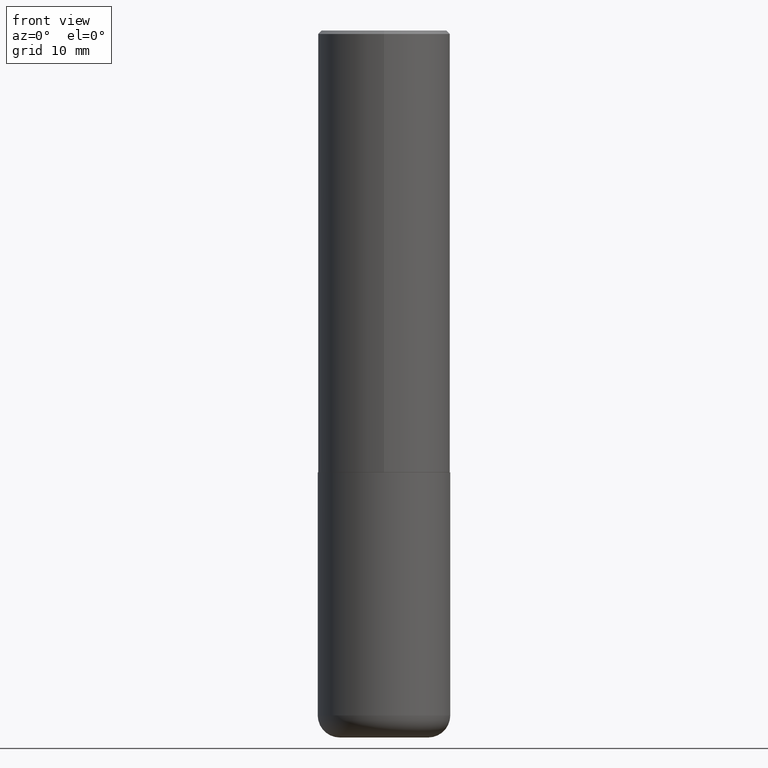
[diagram: clean part render]
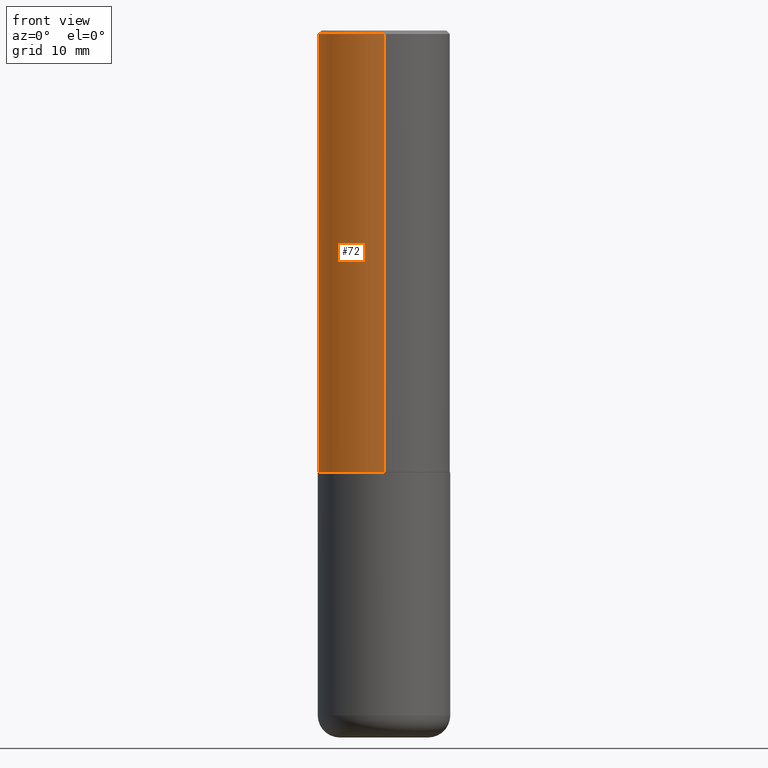
[diagram: same view with one face highlighted and labeled with its STEP entity id]
A machine part, front view. The second image highlights one B-rep face of the part: STEP entity #72.
In plain terms, the highlighted cylindrical surface (partial cylindrical patch) has radius 9.525 mm, axis along (-0, 0, 1).
Its self-contained STEP definition (entity closure, byte-faithful):
#13 = VERTEX_POINT ( 'NONE', #76 ) ;
#36 = VERTEX_POINT ( 'NONE', #269 ) ;
#56 = CARTESIAN_POINT ( 'NONE',  ( 0.000000000000000000, 0.000000000000000000, 0.000000000000000000 ) ) ;
#60 = DIRECTION ( 'NONE',  ( -2.444465131706345255E-29, 3.492918657822378473E-15, 1.000000000000000000 ) ) ;
#69 = ORIENTED_EDGE ( 'NONE', *, *, #197, .F. ) ;
#72 = ADVANCED_FACE ( 'NONE', ( #135 ), #205, .T. ) ;
#74 = VERTEX_POINT ( 'NONE', #119 ) ;
#76 = CARTESIAN_POINT ( 'NONE',  ( 2.664535259100408040E-15, 0.3749999999999915623, -2.499000000000000998 ) ) ;
#107 = AXIS2_PLACEMENT_3D ( 'NONE', #257, #60, #415 ) ;
#109 = ORIENTED_EDGE ( 'NONE', *, *, #403, .F. ) ;
#112 = VERTEX_POINT ( 'NONE', #280 ) ;
#115 = VECTOR ( 'NONE', #291, 39.37007874015748143 ) ;
#119 = CARTESIAN_POINT ( 'NONE',  ( 2.618611004132350411E-15, 0.3749999999999999445, -0.02000000000000139513 ) ) ;
#129 = CARTESIAN_POINT ( 'NONE',  ( 2.664535259100376486E-15, 0.3750000000000001665, -1.309844496683392470E-15 ) ) ;
#135 = FACE_OUTER_BOUND ( 'NONE', #369, .T. ) ;
#175 = ORIENTED_EDGE ( 'NONE', *, *, #367, .T. ) ;
#179 = AXIS2_PLACEMENT_3D ( 'NONE', #56, #217, #410 ) ;
#197 = EDGE_CURVE ( 'NONE', #74, #112, #338, .T. ) ;
#205 = CYLINDRICAL_SURFACE ( 'NONE', #179, 0.3750000000000001665 ) ;
#211 = CARTESIAN_POINT ( 'NONE',  ( 4.888930263412711914E-31, -6.985837315644786578E-17, -0.02000000000000008715 ) ) ;
#217 = DIRECTION ( 'NONE',  ( -2.444465131706345255E-29, 3.492918657822378473E-15, 1.000000000000000000 ) ) ;
#240 = VECTOR ( 'NONE', #284, 39.37007874015748143 ) ;
#243 = EDGE_CURVE ( 'NONE', #36, #112, #283, .T. ) ;
#257 = CARTESIAN_POINT ( 'NONE',  ( 6.108718364134156127E-29, -8.728803725898123939E-15, -2.498999999999999666 ) ) ;
#269 = CARTESIAN_POINT ( 'NONE',  ( -2.618611004132290852E-15, -0.3750000000000090483, -2.498999999999998778 ) ) ;
#280 = CARTESIAN_POINT ( 'NONE',  ( -2.572686749164323547E-15, -0.3750000000000001110, -0.01999999999999877570 ) ) ;
#282 = CIRCLE ( 'NONE', #107, 0.3750000000000002776 ) ;
#283 = LINE ( 'NONE', #349, #240 ) ;
#284 = DIRECTION ( 'NONE',  ( -2.444465131706345255E-29, 3.492918657822378868E-15, 1.000000000000000000 ) ) ;
#291 = DIRECTION ( 'NONE',  ( -2.444465131706345255E-29, 3.492918657822378868E-15, 1.000000000000000000 ) ) ;
#292 = ORIENTED_EDGE ( 'NONE', *, *, #243, .T. ) ;
#338 = CIRCLE ( 'NONE', #393, 0.3750000000000000555 ) ;
#349 = CARTESIAN_POINT ( 'NONE',  ( -2.618611004132351200E-15, -0.3750000000000001665, 1.309844496683392470E-15 ) ) ;
#367 = EDGE_CURVE ( 'NONE', #13, #36, #282, .T. ) ;
#369 = EDGE_LOOP ( 'NONE', ( #109, #175, #292, #69 ) ) ;
#374 = DIRECTION ( 'NONE',  ( -2.444465131706345255E-29, 3.492918657822378473E-15, 1.000000000000000000 ) ) ;
#381 = DIRECTION ( 'NONE',  ( -6.982962677686265922E-15, -1.000000000000000000, 3.494488891895536035E-15 ) ) ;
#393 = AXIS2_PLACEMENT_3D ( 'NONE', #211, #374, #381 ) ;
#403 = EDGE_CURVE ( 'NONE', #13, #74, #417, .T. ) ;
#410 = DIRECTION ( 'NONE',  ( -6.982962677686266711E-15, -1.000000000000000000, 3.492918657822378473E-15 ) ) ;
#415 = DIRECTION ( 'NONE',  ( -6.982962677686266711E-15, -1.000000000000000000, 2.913971193241878794E-15 ) ) ;
#417 = LINE ( 'NONE', #129, #115 ) ;